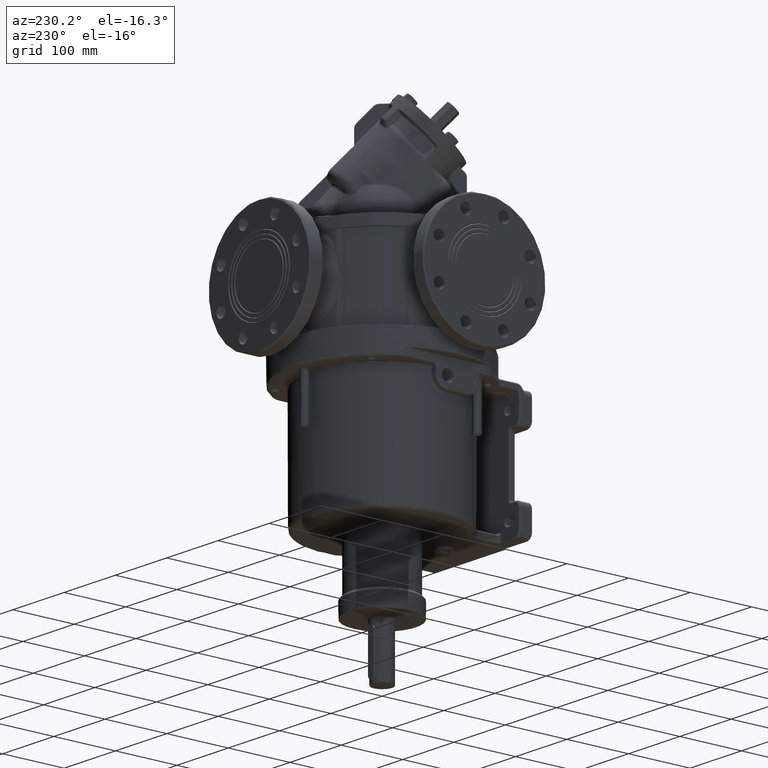
[diagram: clean part render]
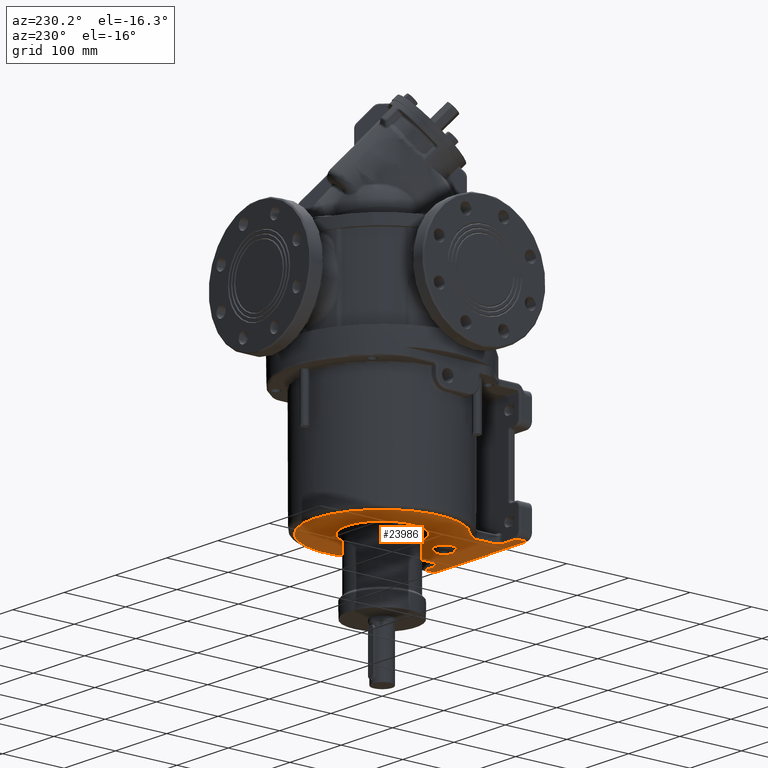
[diagram: same view with one face highlighted and labeled with its STEP entity id]
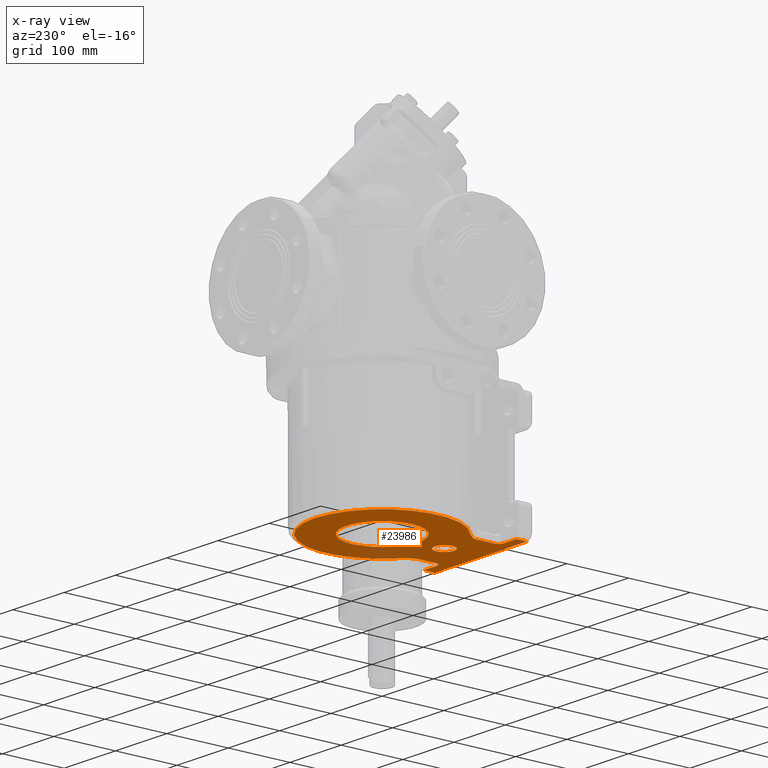
[diagram: x-ray of the same camera — body ghosted, the highlighted face saturated]
A machine part, auxiliary view. The second image highlights one B-rep face of the part: STEP entity #23986.
The next image is the same camera in x-ray: the body ghosted, the highlighted face saturated — about 14% of this face is hidden behind the body in this view.
In plain terms, the highlighted planar face has unit normal (0, 0, 1).
Its self-contained STEP definition (entity closure, byte-faithful):
#5288=DIRECTION('',(1.E0,0.E0,0.E0));
#5289=VECTOR('',#5288,1.8E2);
#5290=CARTESIAN_POINT('',(-9.E1,-1.6E2,-2.02E2));
#5291=LINE('',#5290,#5289);
#5292=DIRECTION('',(-2.423034322205E-10,1.E0,0.E0));
#5293=VECTOR('',#5292,1.7E1);
#5294=CARTESIAN_POINT('',(9.E1,-1.6E2,-2.02E2));
#5295=LINE('',#5294,#5293);
#5296=DIRECTION('',(-1.E0,1.539535787623E-10,0.E0));
#5297=VECTOR('',#5296,2.500000000194E1);
#5298=CARTESIAN_POINT('',(8.999999999588E1,-1.43E2,-2.02E2));
#5299=LINE('',#5298,#5297);
#5300=CARTESIAN_POINT('',(6.5E1,-1.35E2,-2.02E2));
#5301=DIRECTION('',(0.E0,0.E0,-1.E0));
#5302=DIRECTION('',(0.E0,-1.E0,0.E0));
#5303=AXIS2_PLACEMENT_3D('',#5300,#5301,#5302);
#5305=DIRECTION('',(3.636277230981E-6,9.999999999927E-1,-1.212321577035E-6));
#5306=VECTOR('',#5305,2.868402105599E1);
#5307=CARTESIAN_POINT('',(5.700000000442E1,-1.350000000036E2,-2.02E2));
#5308=LINE('',#5307,#5306);
#5309=CARTESIAN_POINT('',(5.700010430747E1,-1.063159789478E2,
-2.020000347743E2));
#5310=CARTESIAN_POINT('',(5.700011993886E1,-1.061453591144E2,
-2.020000335700E2));
#5311=CARTESIAN_POINT('',(5.700617352310E1,-1.058023319013E2,
-2.019999844201E2));
#5312=CARTESIAN_POINT('',(5.703364062839E1,-1.052822404566E2,
-2.020000041746E2));
#5313=CARTESIAN_POINT('',(5.707986210337E1,-1.047571623152E2,
-2.019999988814E2));
#5314=CARTESIAN_POINT('',(5.714523460756E1,-1.042275291597E2,
-2.020000002997E2));
#5315=CARTESIAN_POINT('',(5.723009956223E1,-1.036937041633E2,
-2.019999999197E2));
#5316=CARTESIAN_POINT('',(5.733480331146E1,-1.031562921447E2,
-2.020000000215E2));
#5317=CARTESIAN_POINT('',(5.745980936689E1,-1.026149629147E2,
-2.019999999942E2));
#5318=CARTESIAN_POINT('',(5.760581700418E1,-1.020688297422E2,
-2.020000000015E2));
#5319=CARTESIAN_POINT('',(5.777368037089E1,-1.015172010061E2,
-2.019999999996E2));
#5320=CARTESIAN_POINT('',(5.796442687882E1,-1.009589345012E2,
-2.020000000001E2));
#5321=CARTESIAN_POINT('',(5.817923094654E1,-1.003932822558E2,-2.02E2));
#5322=CARTESIAN_POINT('',(5.841989657052E1,-9.981795925638E1,-2.02E2));
#5323=CARTESIAN_POINT('',(5.868845266406E1,-9.923105506610E1,-2.02E2));
#5324=CARTESIAN_POINT('',(5.898794399636E1,-9.862908625308E1,-2.02E2));
#5325=CARTESIAN_POINT('',(5.932180327641E1,-9.800873562648E1,-2.02E2));
#5326=CARTESIAN_POINT('',(5.969555152827E1,-9.736381168616E1,-2.02E2));
#5327=CARTESIAN_POINT('',(6.011585776283E1,-9.668748108034E1,-2.02E2));
#5328=CARTESIAN_POINT('',(6.059504237619E1,-9.596571006542E1,-2.02E2));
#5329=CARTESIAN_POINT('',(6.114926788676E1,-9.518157213787E1,-2.02E2));
#5330=CARTESIAN_POINT('',(6.180122059410E1,-9.431200181416E1,
-2.020000000002E2));
#5331=CARTESIAN_POINT('',(6.256938027780E1,-9.334156816361E1,
-2.019999999994E2));
#5332=CARTESIAN_POINT('',(6.346629197464E1,-9.226044347160E1,
-2.020000000021E2));
#5333=CARTESIAN_POINT('',(6.449599954291E1,-9.106455592005E1,
-2.019999999921E2));
#5334=CARTESIAN_POINT('',(6.565472461914E1,-8.975173254466E1,
-2.020000000295E2));
#5335=CARTESIAN_POINT('',(6.694771363868E1,-8.830508794484E1,
-2.019999998900E2));
#5336=CARTESIAN_POINT('',(6.837528954856E1,-8.670612249582E1,
-2.020000004104E2));
#5337=CARTESIAN_POINT('',(6.944331484875E1,-8.549480547857E1,
-2.019999991158E2));
#5338=CARTESIAN_POINT('',(7.000000410274E1,-8.485280705635E1,
-2.020000004968E2));
#5340=CARTESIAN_POINT('',(-7.000002259154E1,-8.485281968794E1,
-2.020000009870E2));
#5341=CARTESIAN_POINT('',(-6.942965693859E1,-8.551003120332E1,
-2.019999723100E2));
#5342=CARTESIAN_POINT('',(-6.833978969608E1,-8.674635578249E1,
-2.020000128510E2));
#5343=CARTESIAN_POINT('',(-6.689344931588E1,-8.836557354126E1,
-2.019999965566E2));
#5344=CARTESIAN_POINT('',(-6.559764849402E1,-8.981593379553E1,
-2.020000009227E2));
#5345=CARTESIAN_POINT('',(-6.444084210241E1,-9.112761620003E1,
-2.019999997528E2));
#5346=CARTESIAN_POINT('',(-6.341555423201E1,-9.232047051287E1,
-2.020000000662E2));
#5347=CARTESIAN_POINT('',(-6.252360452966E1,-9.339807013015E1,
-2.019999999822E2));
#5348=CARTESIAN_POINT('',(-6.176004369639E1,-9.436545171514E1,
-2.020000000048E2));
#5349=CARTESIAN_POINT('',(-6.111572583416E1,-9.522774685480E1,
-2.019999999987E2));
#5350=CARTESIAN_POINT('',(-6.056788084352E1,-9.600549358539E1,
-2.020000000003E2));
#5351=CARTESIAN_POINT('',(-6.009395592453E1,-9.672169900228E1,
-2.019999999999E2));
#5352=CARTESIAN_POINT('',(-5.967691170425E1,-9.739494598834E1,-2.02E2));
#5353=CARTESIAN_POINT('',(-5.930629187301E1,-9.803661121170E1,-2.02E2));
#5354=CARTESIAN_POINT('',(-5.897501832610E1,-9.865415022135E1,-2.02E2));
#5355=CARTESIAN_POINT('',(-5.867764109854E1,-9.925379188380E1,-2.02E2));
#5356=CARTESIAN_POINT('',(-5.841090976814E1,-9.983856490038E1,-2.02E2));
#5357=CARTESIAN_POINT('',(-5.817190098521E1,-1.004117460249E2,-2.02E2));
#5358=CARTESIAN_POINT('',(-5.795852705470E1,-1.009753981333E2,
-2.020000000001E2));
#5359=CARTESIAN_POINT('',(-5.776899767105E1,-1.015318258901E2,
-2.019999999995E2));
#5360=CARTESIAN_POINT('',(-5.760217527166E1,-1.020817463420E2,
-2.020000000018E2));
#5361=CARTESIAN_POINT('',(-5.745705869644E1,-1.026262260871E2,
-2.019999999934E2));
#5362=CARTESIAN_POINT('',(-5.733279825480E1,-1.031659494440E2,
-2.020000000245E2));
#5363=CARTESIAN_POINT('',(-5.722870711080E1,-1.037019084496E2,
-2.019999999085E2));
#5364=CARTESIAN_POINT('',(-5.714435304909E1,-1.042341576888E2,
-2.020000003413E2));
#5365=CARTESIAN_POINT('',(-5.707938453652E1,-1.047621592307E2,
-2.019999987261E2));
#5366=CARTESIAN_POINT('',(-5.703345374649E1,-1.052855669825E2,
-2.020000047544E2));
#5367=CARTESIAN_POINT('',(-5.700615417250E1,-1.058039624815E2,
-2.019999822565E2));
#5368=CARTESIAN_POINT('',(-5.700013492407E1,-1.061458707037E2,
-2.020000382319E2));
#5369=CARTESIAN_POINT('',(-5.700011809330E1,-1.063159315612E2,
-2.020000393654E2));
#5371=DIRECTION('',(4.116880560959E-6,-9.999999999906E-1,1.372378926441E-6));
#5372=VECTOR('',#5371,2.868406844267E1);
#5373=CARTESIAN_POINT('',(-5.700011809330E1,-1.063159315612E2,
-2.020000393654E2));
#5374=LINE('',#5373,#5372);
#5375=CARTESIAN_POINT('',(-6.5E1,-1.35E2,-2.02E2));
#5376=DIRECTION('',(0.E0,0.E0,-1.E0));
#5377=DIRECTION('',(1.E0,0.E0,0.E0));
#5378=AXIS2_PLACEMENT_3D('',#5375,#5376,#5377);
#5380=DIRECTION('',(-1.E0,-1.539956429233E-10,0.E0));
#5381=VECTOR('',#5380,2.499999999689E1);
#5382=CARTESIAN_POINT('',(-6.499999999394E1,-1.429999999962E2,-2.02E2));
#5383=LINE('',#5382,#5381);
#5384=DIRECTION('',(5.394783182269E-10,1.E0,0.E0));
#5385=VECTOR('',#5384,1.7E1);
#5386=CARTESIAN_POINT('',(-9.E1,-1.6E2,-2.02E2));
#5387=LINE('',#5386,#5385);
#5388=CARTESIAN_POINT('',(0.E0,-2.473785534278E-14,-2.02E2));
#5389=DIRECTION('',(0.E0,0.E0,1.E0));
#5390=DIRECTION('',(-1.E0,0.E0,0.E0));
#5391=AXIS2_PLACEMENT_3D('',#5388,#5389,#5390);
#5393=CARTESIAN_POINT('',(0.E0,-2.473785534278E-14,-2.02E2));
#5394=DIRECTION('',(0.E0,0.E0,1.E0));
#5395=DIRECTION('',(1.E0,0.E0,0.E0));
#5396=AXIS2_PLACEMENT_3D('',#5393,#5394,#5395);
#5398=CARTESIAN_POINT('',(0.E0,-1.01E2,-2.02E2));
#5399=DIRECTION('',(0.E0,0.E0,-1.E0));
#5400=DIRECTION('',(1.E0,0.E0,0.E0));
#5401=AXIS2_PLACEMENT_3D('',#5398,#5399,#5400);
#5403=CARTESIAN_POINT('',(0.E0,-1.01E2,-2.02E2));
#5404=DIRECTION('',(0.E0,0.E0,-1.E0));
#5405=DIRECTION('',(-1.E0,0.E0,0.E0));
#5406=AXIS2_PLACEMENT_3D('',#5403,#5404,#5405);
#5769=CARTESIAN_POINT('',(-7.000002259154E1,-8.485281968794E1,
-2.020000009870E2));
#5857=CARTESIAN_POINT('',(0.E0,-2.473785534278E-14,-2.02E2));
#5858=DIRECTION('',(0.E0,0.E0,-1.E0));
#5859=DIRECTION('',(-6.363645381818E-1,-7.713884718770E-1,0.E0));
#5860=AXIS2_PLACEMENT_3D('',#5857,#5858,#5859);
#14931=CARTESIAN_POINT('',(1.55E1,-1.01E2,-2.02E2));
#14932=CARTESIAN_POINT('',(-1.55E1,-1.01E2,-2.02E2));
#14933=VERTEX_POINT('',#14931);
#14934=VERTEX_POINT('',#14932);
#14991=CARTESIAN_POINT('',(-5.8E1,-3.184080677783E-14,-2.02E2));
#14992=CARTESIAN_POINT('',(5.8E1,-2.473785534278E-14,-2.02E2));
#14993=VERTEX_POINT('',#14991);
#14994=VERTEX_POINT('',#14992);
#15090=VERTEX_POINT('',#5309);
#15091=VERTEX_POINT('',#5338);
#15095=CARTESIAN_POINT('',(5.700000000442E1,-1.350000000036E2,-2.02E2));
#15096=VERTEX_POINT('',#15095);
#15099=CARTESIAN_POINT('',(6.5E1,-1.43E2,-2.02E2));
#15100=VERTEX_POINT('',#15099);
#15103=CARTESIAN_POINT('',(8.999999999588E1,-1.43E2,-2.02E2));
#15104=VERTEX_POINT('',#15103);
#15307=CARTESIAN_POINT('',(-9.E1,-1.43E2,-2.02E2));
#15308=VERTEX_POINT('',#15307);
#15311=CARTESIAN_POINT('',(-6.499999999394E1,-1.429999999962E2,-2.02E2));
#15312=VERTEX_POINT('',#15311);
#15315=CARTESIAN_POINT('',(-5.7E1,-1.35E2,-2.02E2));
#15316=VERTEX_POINT('',#15315);
#15319=CARTESIAN_POINT('',(-5.700011809330E1,-1.063159315612E2,
-2.020000393654E2));
#15320=VERTEX_POINT('',#15319);
#15321=VERTEX_POINT('',#5769);
#15395=CARTESIAN_POINT('',(-9.E1,-1.6E2,-2.02E2));
#15396=CARTESIAN_POINT('',(9.E1,-1.6E2,-2.02E2));
#15397=VERTEX_POINT('',#15395);
#15398=VERTEX_POINT('',#15396);
#23944=CARTESIAN_POINT('',(0.E0,-2.473785534278E-14,-2.02E2));
#23945=DIRECTION('',(0.E0,0.E0,1.E0));
#23946=DIRECTION('',(1.E0,0.E0,0.E0));
#23947=AXIS2_PLACEMENT_3D('',#23944,#23945,#23946);
#23948=PLANE('',#23947);
#23950=ORIENTED_EDGE('',*,*,#23949,.T.);
#23952=ORIENTED_EDGE('',*,*,#23951,.T.);
#23954=ORIENTED_EDGE('',*,*,#23953,.T.);
#23956=ORIENTED_EDGE('',*,*,#23955,.T.);
#23958=ORIENTED_EDGE('',*,*,#23957,.T.);
#23959=ORIENTED_EDGE('',*,*,#23936,.T.);
#23961=ORIENTED_EDGE('',*,*,#23960,.F.);
#23963=ORIENTED_EDGE('',*,*,#23962,.T.);
#23965=ORIENTED_EDGE('',*,*,#23964,.T.);
#23967=ORIENTED_EDGE('',*,*,#23966,.T.);
#23969=ORIENTED_EDGE('',*,*,#23968,.T.);
#23971=ORIENTED_EDGE('',*,*,#23970,.F.);
#23972=EDGE_LOOP('',(#23950,#23952,#23954,#23956,#23958,#23959,#23961,#23963,
#23965,#23967,#23969,#23971));
#23973=FACE_OUTER_BOUND('',#23972,.F.);
#23975=ORIENTED_EDGE('',*,*,#23974,.F.);
#23977=ORIENTED_EDGE('',*,*,#23976,.F.);
#23978=EDGE_LOOP('',(#23975,#23977));
#23979=FACE_BOUND('',#23978,.F.);
#23981=ORIENTED_EDGE('',*,*,#23980,.T.);
#23983=ORIENTED_EDGE('',*,*,#23982,.T.);
#23984=EDGE_LOOP('',(#23981,#23983));
#23985=FACE_BOUND('',#23984,.F.);
#23986=ADVANCED_FACE('',(#23973,#23979,#23985),#23948,.F.);
#5304=CIRCLE('',#5303,8.E0);
#5339=B_SPLINE_CURVE_WITH_KNOTS('',3,(#5309,#5310,#5311,#5312,#5313,#5314,#5315,
#5316,#5317,#5318,#5319,#5320,#5321,#5322,#5323,#5324,#5325,#5326,#5327,#5328,
#5329,#5330,#5331,#5332,#5333,#5334,#5335,#5336,#5337,#5338),.UNSPECIFIED.,.F.,
.F.,(4,1,1,1,1,1,1,1,1,1,1,1,1,1,1,1,1,1,1,1,1,1,1,1,1,1,1,4),(0.E0,
3.703703703704E-2,7.407407407407E-2,1.111111111111E-1,1.481481481481E-1,
1.851851851852E-1,2.222222222222E-1,2.592592592593E-1,2.962962962963E-1,
3.333333333333E-1,3.703703703704E-1,4.074074074074E-1,4.444444444444E-1,
4.814814814815E-1,5.185185185185E-1,5.555555555556E-1,5.925925925926E-1,
6.296296296296E-1,6.666666666667E-1,7.037037037037E-1,7.407407407407E-1,
7.777777777778E-1,8.148148148148E-1,8.518518518519E-1,8.888888888889E-1,
9.259259259259E-1,9.629629629630E-1,1.E0),.UNSPECIFIED.);
#5370=B_SPLINE_CURVE_WITH_KNOTS('',3,(#5340,#5341,#5342,#5343,#5344,#5345,#5346,
#5347,#5348,#5349,#5350,#5351,#5352,#5353,#5354,#5355,#5356,#5357,#5358,#5359,
#5360,#5361,#5362,#5363,#5364,#5365,#5366,#5367,#5368,#5369),.UNSPECIFIED.,.F.,
.F.,(4,1,1,1,1,1,1,1,1,1,1,1,1,1,1,1,1,1,1,1,1,1,1,1,1,1,1,4),(0.E0,
3.703703703704E-2,7.407407407407E-2,1.111111111111E-1,1.481481481481E-1,
1.851851851852E-1,2.222222222222E-1,2.592592592593E-1,2.962962962963E-1,
3.333333333333E-1,3.703703703704E-1,4.074074074074E-1,4.444444444444E-1,
4.814814814815E-1,5.185185185185E-1,5.555555555556E-1,5.925925925926E-1,
6.296296296296E-1,6.666666666667E-1,7.037037037037E-1,7.407407407407E-1,
7.777777777778E-1,8.148148148148E-1,8.518518518519E-1,8.888888888889E-1,
9.259259259259E-1,9.629629629630E-1,1.E0),.UNSPECIFIED.);
#5379=CIRCLE('',#5378,8.E0);
#5392=CIRCLE('',#5391,5.8E1);
#5397=CIRCLE('',#5396,5.8E1);
#5402=CIRCLE('',#5401,1.55E1);
#5407=CIRCLE('',#5406,1.55E1);
#5861=CIRCLE('',#5860,1.1E2);
#23936=EDGE_CURVE('',#15090,#15091,#5339,.T.);
#23949=EDGE_CURVE('',#15397,#15398,#5291,.T.);
#23951=EDGE_CURVE('',#15398,#15104,#5295,.T.);
#23953=EDGE_CURVE('',#15104,#15100,#5299,.T.);
#23955=EDGE_CURVE('',#15100,#15096,#5304,.T.);
#23957=EDGE_CURVE('',#15096,#15090,#5308,.T.);
#23960=EDGE_CURVE('',#15321,#15091,#5861,.T.);
#23962=EDGE_CURVE('',#15321,#15320,#5370,.T.);
#23964=EDGE_CURVE('',#15320,#15316,#5374,.T.);
#23966=EDGE_CURVE('',#15316,#15312,#5379,.T.);
#23968=EDGE_CURVE('',#15312,#15308,#5383,.T.);
#23970=EDGE_CURVE('',#15397,#15308,#5387,.T.);
#23974=EDGE_CURVE('',#14993,#14994,#5392,.T.);
#23976=EDGE_CURVE('',#14994,#14993,#5397,.T.);
#23980=EDGE_CURVE('',#14933,#14934,#5402,.T.);
#23982=EDGE_CURVE('',#14934,#14933,#5407,.T.);